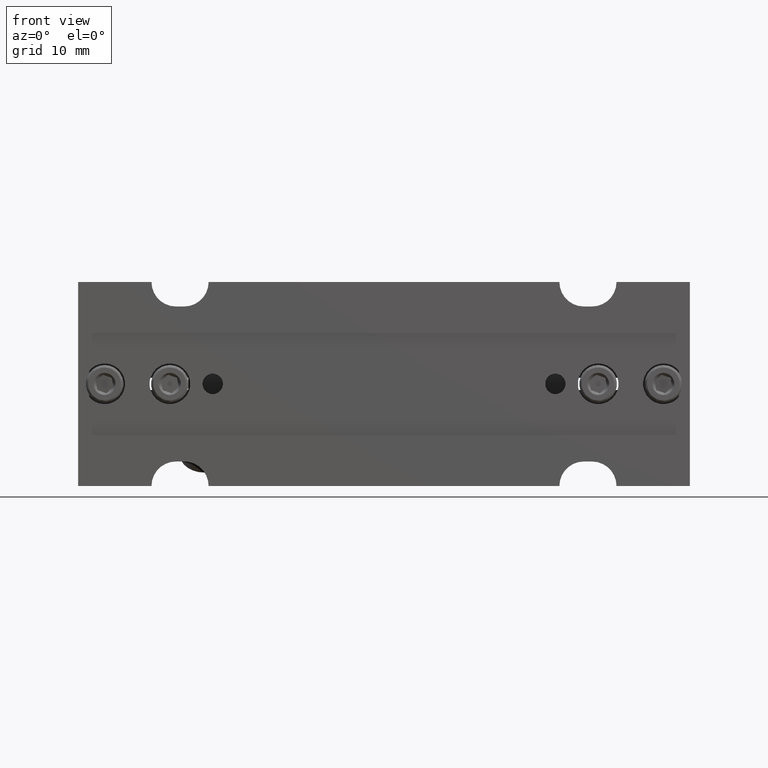
[diagram: clean part render]
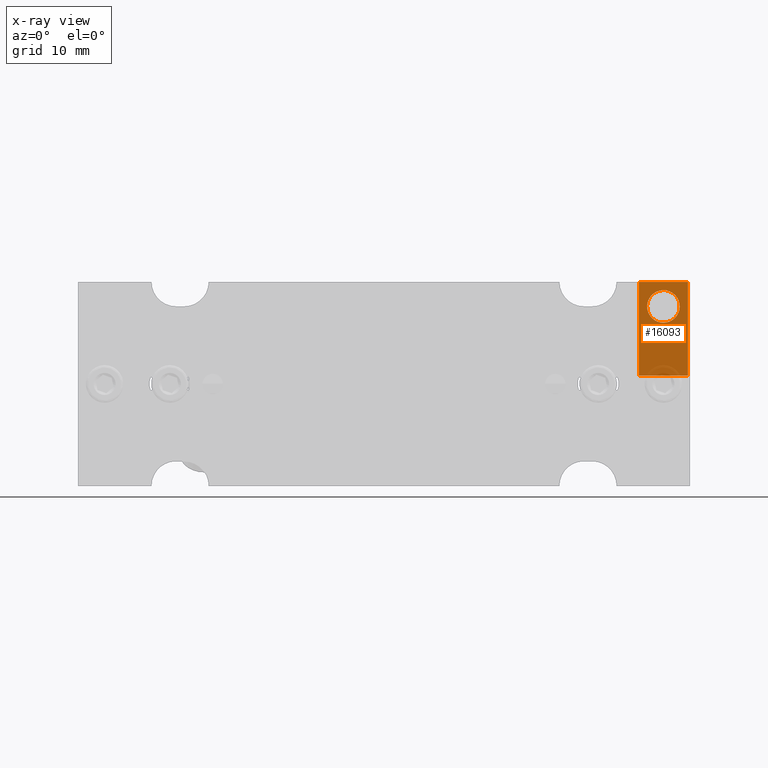
[diagram: x-ray — body ghosted, one internal face saturated and labeled with its STEP entity id]
A machine part, front view, then the same camera in x-ray: the body is ghosted and one INTERNAL B-rep face — a face not visible from any outside direction — is saturated and labeled: STEP entity #16093.
In plain terms, the highlighted planar face has unit normal (0, 1, -0).
Its self-contained STEP definition (entity closure, byte-faithful):
#106 = CARTESIAN_POINT ( 'NONE',  ( 51.07634596628248147, 47.42343476192745300, 53.43264947075041960 ) ) ;
#338 = CARTESIAN_POINT ( 'NONE',  ( 55.68552075850722360, 47.42343476192745300, 76.65179679273362012 ) ) ;
#375 = CARTESIAN_POINT ( 'NONE',  ( 52.43577906359823970, 47.42343476192744589, 76.59151893909458408 ) ) ;
#579 = CARTESIAN_POINT ( 'NONE',  ( 52.07641331924305916, 47.42343476192746010, 75.68662549308307064 ) ) ;
#677 = CARTESIAN_POINT ( 'NONE',  ( 53.39948910815080296, 47.42343476192743168, 77.31471575769116100 ) ) ;
#744 = CARTESIAN_POINT ( 'NONE',  ( 51.07634596628248147, 47.42343476192745300, 65.93264947075040538 ) ) ;
#930 = EDGE_LOOP ( 'NONE', ( #18765, #12363, #17464, #1438 ) ) ;
#1438 = ORIENTED_EDGE ( 'NONE', *, *, #13253, .F. ) ;
#1465 = CARTESIAN_POINT ( 'NONE',  ( 55.92301018409906277, 47.42343476192745300, 74.66444947005332722 ) ) ;
#1646 = CARTESIAN_POINT ( 'NONE',  ( 51.07634596628248858, 47.42343476192745300, 78.43264947075040538 ) ) ;
#1807 = VERTEX_POINT ( 'NONE', #13120 ) ;
#1868 = CARTESIAN_POINT ( 'NONE',  ( 55.83447176484785501, 47.42343476192743879, 76.42529181771494962 ) ) ;
#1878 = VERTEX_POINT ( 'NONE', #7298 ) ;
#1904 = CARTESIAN_POINT ( 'NONE',  ( 53.57644646812409661, 47.42343476192743879, 73.47945727004214689 ) ) ;
#1987 = DIRECTION ( 'NONE',  ( 0.000000000000000000, 0.000000000000000000, 1.000000000000000000 ) ) ;
#2002 = CARTESIAN_POINT ( 'NONE',  ( 52.09383995717639237, 47.42343476192745300, 75.11839677381890112 ) ) ;
#2208 = CARTESIAN_POINT ( 'NONE',  ( 53.32538842709841731, 47.42343476192745300, 73.57892384353704074 ) ) ;
#2216 = VERTEX_POINT ( 'NONE', #10097 ) ;
#2286 = EDGE_CURVE ( 'NONE', #13933, #8443, #14446, .T. ) ;
#3101 = CARTESIAN_POINT ( 'NONE',  ( 54.79650707741450333, 47.42343476192745300, 73.56673219340200376 ) ) ;
#3204 = CARTESIAN_POINT ( 'NONE',  ( 55.03066690143295148, 47.42343476192745300, 77.19291757492447914 ) ) ;
#3302 = CARTESIAN_POINT ( 'NONE',  ( 55.90955156666034043, 47.42343476192746010, 74.63280271837717805 ) ) ;
#3404 = CARTESIAN_POINT ( 'NONE',  ( 55.23521543462923233, 47.42343476192744589, 77.07321637343363818 ) ) ;
#3438 = CARTESIAN_POINT ( 'NONE',  ( 53.36977155924966354, 47.42343476192746721, 77.30374517973221771 ) ) ;
#3540 = CARTESIAN_POINT ( 'NONE',  ( 52.14505072111182216, 47.42343476192744589, 74.90555163631523783 ) ) ;
#3622 = LINE ( 'NONE', #13030, #12280 ) ;
#3748 = CARTESIAN_POINT ( 'NONE',  ( 52.22968174846489831, 47.42343476192745300, 76.20084947144738408 ) ) ;
#3851 = CARTESIAN_POINT ( 'NONE',  ( 52.19426415658904972, 47.42343476192744589, 74.75583185188622792 ) ) ;
#4633 = CARTESIAN_POINT ( 'NONE',  ( 54.78292037331658548, 47.42343476192746721, 73.56155376176866412 ) ) ;
#4943 = CARTESIAN_POINT ( 'NONE',  ( 55.88881740737176784, 47.42343476192744589, 74.58569642076020045 ) ) ;
#4984 = CARTESIAN_POINT ( 'NONE',  ( 53.30814596558885654, 47.42343476192744589, 73.58598525293083981 ) ) ;
#5051 = CARTESIAN_POINT ( 'NONE',  ( 55.97434537481967709, 47.42343476192745300, 76.06476229162515779 ) ) ;
#5086 = CARTESIAN_POINT ( 'NONE',  ( 52.31607786210761191, 47.42343476192745300, 76.38697040589893561 ) ) ;
#5282 = CARTESIAN_POINT ( 'NONE',  ( 52.91747649796231201, 47.42343476192745300, 73.79208256805149801 ) ) ;
#5379 = B_SPLINE_CURVE_WITH_KNOTS ( 'NONE', 3,
 ( #8248, #11608, #17442, #9674, #8356, #677, #3438, #11309, #19086, #19284, #6520, #375, #5086, #16113, #11405, #3748, #9977, #15811, #579, #17544, #2002, #3540, #16211, #3851, #19184, #12839, #14584, #6617, #5386, #5282, #17742, #14477, #11204, #4984, #2208, #1904, #6825, #15915 ),
 .UNSPECIFIED., .F., .F.,
 ( 4, 1, 1, 1, 2, 2, 2, 1, 1, 1, 2, 2, 2, 1, 1, 1, 2, 2, 2, 1, 1, 1, 2, 2, 4 ),
 ( 0.000000000000000000, 0.06250000000002187139, 0.09375000000003451406, 0.1093750000000398709, 0.1171875000000398154, 0.1250000000000397460, 0.2500000000000789924, 0.3125000000000997535, 0.3437500000001074696, 0.3593750000001105782, 0.3671875000001099676, 0.3750000000001093015, 0.5000000000001048051, 0.5625000000001060263, 0.5937500000001028067, 0.6093750000001051381, 0.6171875000001029177, 0.6250000000001008083, 0.7500000000000771605, 0.8125000000000663913, 0.8437500000000578426, 0.8593750000000537348, 0.8671875000000502931, 0.8750000000000468514, 1.000000000000000000 ),
 .UNSPECIFIED. ) ;
#5386 = CARTESIAN_POINT ( 'NONE',  ( 52.75961301885038779, 47.42343476192744589, 73.92090278817342153 ) ) ;
#5823 = VECTOR ( 'NONE', #12250, 1000.000000000000000 ) ;
#6181 = CARTESIAN_POINT ( 'NONE',  ( 55.39307891372978077, 47.42343476192744589, 76.94439615331843640 ) ) ;
#6278 = CARTESIAN_POINT ( 'NONE',  ( 56.02947062906315523, 47.42343476192745300, 74.93257950383672039 ) ) ;
#6520 = CARTESIAN_POINT ( 'NONE',  ( 52.56459928371385359, 47.42343476192744589, 76.74938241819620544 ) ) ;
#6571 = CARTESIAN_POINT ( 'NONE',  ( 57.07634596628248858, 47.42343476192745300, 66.92480621239963057 ) ) ;
#6617 = CARTESIAN_POINT ( 'NONE',  ( 52.46717117402736363, 47.42343476192744589, 74.21350214878518159 ) ) ;
#6825 = CARTESIAN_POINT ( 'NONE',  ( 53.82184294116533607, 47.42343476192744589, 73.43264947075043381 ) ) ;
#7298 = CARTESIAN_POINT ( 'NONE',  ( 57.07634596628248858, 47.42343476192745300, 78.43264947075040538 ) ) ;
#7393 = EDGE_CURVE ( 'NONE', #11329, #13933, #18898, .T. ) ;
#7653 = CARTESIAN_POINT ( 'NONE',  ( 51.07634596628248147, 47.42343476192745300, 66.92480621239963057 ) ) ;
#7816 = CARTESIAN_POINT ( 'NONE',  ( 54.07634596628248147, 47.42343476192745300, 77.43264947075040538 ) ) ;
#7913 = CARTESIAN_POINT ( 'NONE',  ( 55.93007581461635880, 47.42343476192745300, 74.68170258586351906 ) ) ;
#8116 = CARTESIAN_POINT ( 'NONE',  ( 54.82730350546570719, 47.42343476192746010, 77.28637509796381266 ) ) ;
#8248 = CARTESIAN_POINT ( 'NONE',  ( 54.07634596628248147, 47.42343476192745300, 77.43264947075040538 ) ) ;
#8356 = CARTESIAN_POINT ( 'NONE',  ( 53.44416796831279726, 47.42343476192745300, 77.33062309573173820 ) ) ;
#8443 = VERTEX_POINT ( 'NONE', #1646 ) ;
#9337 = CARTESIAN_POINT ( 'NONE',  ( 56.07637964276358389, 47.42343476192745300, 75.55963748190814044 ) ) ;
#9537 = CARTESIAN_POINT ( 'NONE',  ( 56.07627861332026242, 47.42343476192745300, 75.17867344843487842 ) ) ;
#9637 = CARTESIAN_POINT ( 'NONE',  ( 54.84454596697980122, 47.42343476192746010, 77.27931368856783934 ) ) ;
#9674 = CARTESIAN_POINT ( 'NONE',  ( 53.54913639969584693, 47.42343476192746010, 77.36390051554069203 ) ) ;
#9771 = EDGE_LOOP ( 'NONE', ( #14957, #14943 ) ) ;
#9977 = CARTESIAN_POINT ( 'NONE',  ( 52.22261611794871783, 47.42343476192744589, 76.18359635563865595 ) ) ;
#10097 = CARTESIAN_POINT ( 'NONE',  ( 54.07634596628248147, 47.42343476192745300, 73.43264947075041960 ) ) ;
#10590 = LINE ( 'NONE', #12537, #18098 ) ;
#10859 = CARTESIAN_POINT ( 'NONE',  ( 55.94744983128704519, 47.42343476192744589, 76.13920326053889198 ) ) ;
#10929 = DIRECTION ( 'NONE',  ( 0.000000000000000000, 1.000000000000000000, -5.551115123125782702E-17 ) ) ;
#10964 = CARTESIAN_POINT ( 'NONE',  ( 56.05885197539002718, 47.42343476192746721, 75.74690216766698825 ) ) ;
#11166 = CARTESIAN_POINT ( 'NONE',  ( 55.94226324362981728, 47.42343476192745300, 76.15281058188411123 ) ) ;
#11204 = CARTESIAN_POINT ( 'NONE',  ( 53.27649921391584797, 47.42343476192746010, 73.59944387036682656 ) ) ;
#11309 = CARTESIAN_POINT ( 'NONE',  ( 53.35618485514929432, 47.42343476192746010, 77.29856674809811068 ) ) ;
#11329 = VERTEX_POINT ( 'NONE', #6571 ) ;
#11405 = CARTESIAN_POINT ( 'NONE',  ( 52.24314036590275379, 47.42343476192746721, 76.23249622312339113 ) ) ;
#11608 = CARTESIAN_POINT ( 'NONE',  ( 53.94927282585784667, 47.42343476192746721, 77.43264947075040538 ) ) ;
#12250 = DIRECTION ( 'NONE',  ( -1.000000000000000000, 0.000000000000000000, -0.000000000000000000 ) ) ;
#12280 = VECTOR ( 'NONE', #1987, 1000.000000000000000 ) ;
#12363 = ORIENTED_EDGE ( 'NONE', *, *, #2286, .T. ) ;
#12402 = CARTESIAN_POINT ( 'NONE',  ( 54.70852396425613762, 47.42343476192745300, 73.53467584576907257 ) ) ;
#12499 = CARTESIAN_POINT ( 'NONE',  ( 56.00764121145424923, 47.42343476192746721, 75.95974730517430373 ) ) ;
#12537 = CARTESIAN_POINT ( 'NONE',  ( 51.07634596628248147, 47.42343476192746010, 78.43264947075040538 ) ) ;
#12673 = DIRECTION ( 'NONE',  ( 0.000000000000000000, 5.551115123125782702E-17, 1.000000000000000000 ) ) ;
#12704 = CARTESIAN_POINT ( 'NONE',  ( 54.33084899141341850, 47.42343476192746010, 77.43264947075041960 ) ) ;
#12802 = CARTESIAN_POINT ( 'NONE',  ( 55.06898831327401922, 47.42343476192746010, 73.67452367220317910 ) ) ;
#12839 = CARTESIAN_POINT ( 'NONE',  ( 52.21042868893408695, 47.42343476192746010, 74.71248835961857537 ) ) ;
#13030 = CARTESIAN_POINT ( 'NONE',  ( 57.07634596628248858, 47.42343476192745300, 65.93264947075040538 ) ) ;
#13120 = CARTESIAN_POINT ( 'NONE',  ( 54.07634596628248147, 47.42343476192745300, 77.43264947075040538 ) ) ;
#13253 = EDGE_CURVE ( 'NONE', #11329, #1878, #3622, .T. ) ;
#13830 = B_SPLINE_CURVE_WITH_KNOTS ( 'NONE', 3,
 ( #15173, #16808, #14134, #17308, #12402, #17108, #4633, #3101, #12802, #15874, #14341, #19044, #20178, #4943, #3302, #1465, #7913, #6278, #9537, #9337, #10964, #12499, #5051, #15581, #10859, #11166, #1868, #338, #6181, #3404, #3204, #15679, #15473, #9637, #8116, #15771, #12704, #7816 ),
 .UNSPECIFIED., .F., .F.,
 ( 4, 1, 1, 1, 2, 2, 2, 1, 1, 1, 2, 2, 2, 1, 1, 1, 2, 2, 2, 1, 1, 1, 2, 2, 4 ),
 ( 0.000000000000000000, 0.06250000000003663736, 0.09375000000005495604, 0.1093750000000650868, 0.1171875000000696387, 0.1250000000000741907, 0.2500000000001597056, 0.3125000000002024492, 0.3437500000002264855, 0.3593750000002385314, 0.3671875000002416956, 0.3750000000002448042, 0.5000000000002022826, 0.5625000000001776357, 0.5937500000001684208, 0.6093750000001604272, 0.6171875000001533218, 0.6250000000001461054, 0.7500000000000984768, 0.8125000000000724976, 0.8437500000000590639, 0.8593750000000522915, 0.8671875000000490719, 0.8750000000000457412, 1.000000000000000000 ),
 .UNSPECIFIED. ) ;
#13933 = VERTEX_POINT ( 'NONE', #15005 ) ;
#14134 = CARTESIAN_POINT ( 'NONE',  ( 54.39074763942512192, 47.42343476192746010, 73.45020239548479424 ) ) ;
#14341 = CARTESIAN_POINT ( 'NONE',  ( 55.58809264884698820, 47.42343476192745300, 74.11591652330407953 ) ) ;
#14446 = LINE ( 'NONE', #744, #20016 ) ;
#14477 = CARTESIAN_POINT ( 'NONE',  ( 53.22939291630320469, 47.42343476192746010, 73.62017802965158353 ) ) ;
#14584 = CARTESIAN_POINT ( 'NONE',  ( 52.31822016773448780, 47.42343476192746010, 74.44000712375608941 ) ) ;
#14654 = DIRECTION ( 'NONE',  ( 0.000000000000000000, 0.000000000000000000, 1.000000000000000000 ) ) ;
#14943 = ORIENTED_EDGE ( 'NONE', *, *, #17493, .T. ) ;
#14957 = ORIENTED_EDGE ( 'NONE', *, *, #19399, .T. ) ;
#15005 = CARTESIAN_POINT ( 'NONE',  ( 51.07634596628248147, 47.42343476192745300, 66.92480621239963057 ) ) ;
#15173 = CARTESIAN_POINT ( 'NONE',  ( 54.07634596628248147, 47.42343476192745300, 73.43264947075041960 ) ) ;
#15473 = CARTESIAN_POINT ( 'NONE',  ( 54.87619271865613513, 47.42343476192744589, 77.26585507112987727 ) ) ;
#15581 = CARTESIAN_POINT ( 'NONE',  ( 55.95842777597631823, 47.42343476192746010, 76.10946708961064644 ) ) ;
#15679 = CARTESIAN_POINT ( 'NONE',  ( 54.92329901627338273, 47.42343476192745300, 77.24512091184237761 ) ) ;
#15709 = DIRECTION ( 'NONE',  ( -1.000000000000000000, 0.000000000000000000, -0.000000000000000000 ) ) ;
#15771 = CARTESIAN_POINT ( 'NONE',  ( 54.57624546445467217, 47.42343476192745300, 77.38584167145870651 ) ) ;
#15787 = AXIS2_PLACEMENT_3D ( 'NONE', #106, #10929, #12673 ) ;
#15811 = CARTESIAN_POINT ( 'NONE',  ( 52.12322130350014504, 47.42343476192746010, 75.93271943764170828 ) ) ;
#15843 = FACE_BOUND ( 'NONE', #9771, .T. ) ;
#15874 = CARTESIAN_POINT ( 'NONE',  ( 55.29549328827275190, 47.42343476192744589, 73.82347467852390821 ) ) ;
#15915 = CARTESIAN_POINT ( 'NONE',  ( 54.07634596628248147, 47.42343476192745300, 73.43264947075041960 ) ) ;
#16093 = ADVANCED_FACE ( 'NONE', ( #20142, #15843 ), #16966, .T. ) ;
#16113 = CARTESIAN_POINT ( 'NONE',  ( 52.26387452519005450, 47.42343476192745300, 76.27960252074018399 ) ) ;
#16211 = CARTESIAN_POINT ( 'NONE',  ( 52.17834655774591113, 47.42343476192744589, 74.80053664986908757 ) ) ;
#16617 = EDGE_CURVE ( 'NONE', #1878, #8443, #10590, .T. ) ;
#16808 = CARTESIAN_POINT ( 'NONE',  ( 54.20341910671226771, 47.42343476192744589, 73.43264947075039117 ) ) ;
#16966 = PLANE ( 'NONE',  #15787 ) ;
#17108 = CARTESIAN_POINT ( 'NONE',  ( 54.75320282441656872, 47.42343476192746010, 73.55058318380966398 ) ) ;
#17308 = CARTESIAN_POINT ( 'NONE',  ( 54.60355553287595143, 47.42343476192745300, 73.50139842596011874 ) ) ;
#17442 = CARTESIAN_POINT ( 'NONE',  ( 53.76194429314890755, 47.42343476192746010, 77.41509654601604495 ) ) ;
#17464 = ORIENTED_EDGE ( 'NONE', *, *, #16617, .F. ) ;
#17493 = EDGE_CURVE ( 'NONE', #1807, #2216, #5379, .T. ) ;
#17544 = CARTESIAN_POINT ( 'NONE',  ( 52.07631228980218907, 47.42343476192744589, 75.30566145958405855 ) ) ;
#17742 = CARTESIAN_POINT ( 'NONE',  ( 53.12202503115199193, 47.42343476192746721, 73.67238136656456504 ) ) ;
#18098 = VECTOR ( 'NONE', #15709, 1000.000000000000000 ) ;
#18765 = ORIENTED_EDGE ( 'NONE', *, *, #7393, .T. ) ;
#18898 = LINE ( 'NONE', #7653, #5823 ) ;
#19044 = CARTESIAN_POINT ( 'NONE',  ( 55.71691286895951123, 47.42343476192744589, 74.27378000240526035 ) ) ;
#19086 = CARTESIAN_POINT ( 'NONE',  ( 53.08370361931009285, 47.42343476192744589, 77.19077526930966826 ) ) ;
#19184 = CARTESIAN_POINT ( 'NONE',  ( 52.20524210127813092, 47.42343476192747431, 74.72609568095985821 ) ) ;
#19284 = CARTESIAN_POINT ( 'NONE',  ( 52.85719864430043913, 47.42343476192744589, 77.04182426297809627 ) ) ;
#19399 = EDGE_CURVE ( 'NONE', #2216, #1807, #13830, .T. ) ;
#20016 = VECTOR ( 'NONE', #14654, 1000.000000000000000 ) ;
#20142 = FACE_OUTER_BOUND ( 'NONE', #930, .T. ) ;
#20178 = CARTESIAN_POINT ( 'NONE',  ( 55.83661407045195091, 47.42343476192746721, 74.47832853560113620 ) ) ;